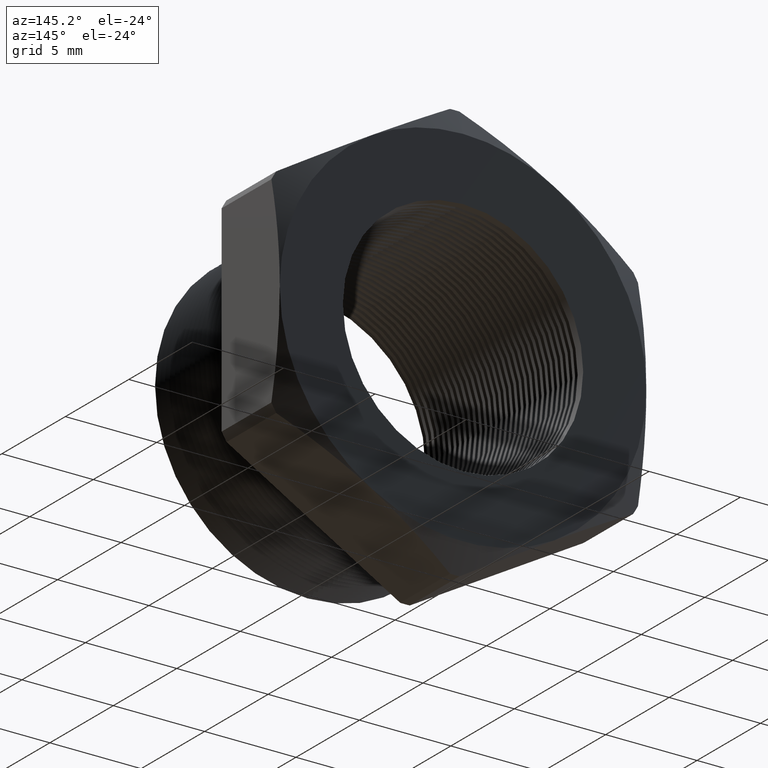
[diagram: clean part render]
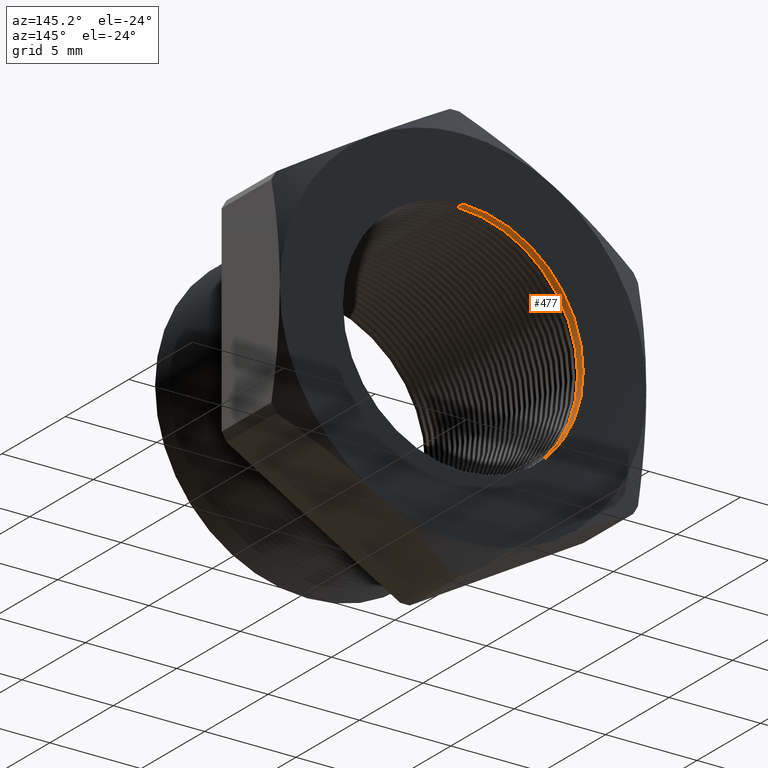
[diagram: same view with one face highlighted and labeled with its STEP entity id]
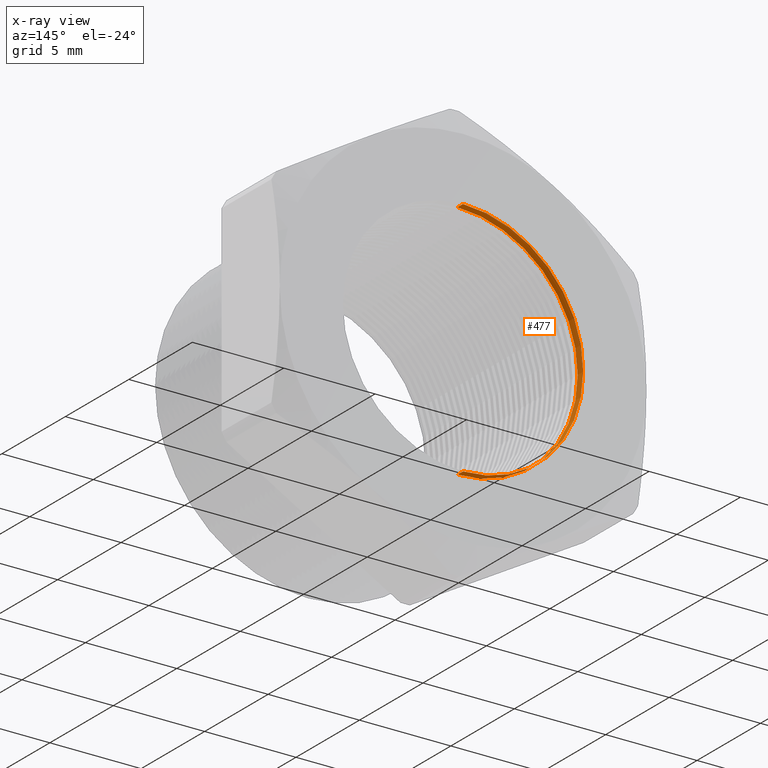
[diagram: x-ray of the same camera — body ghosted, the highlighted face saturated]
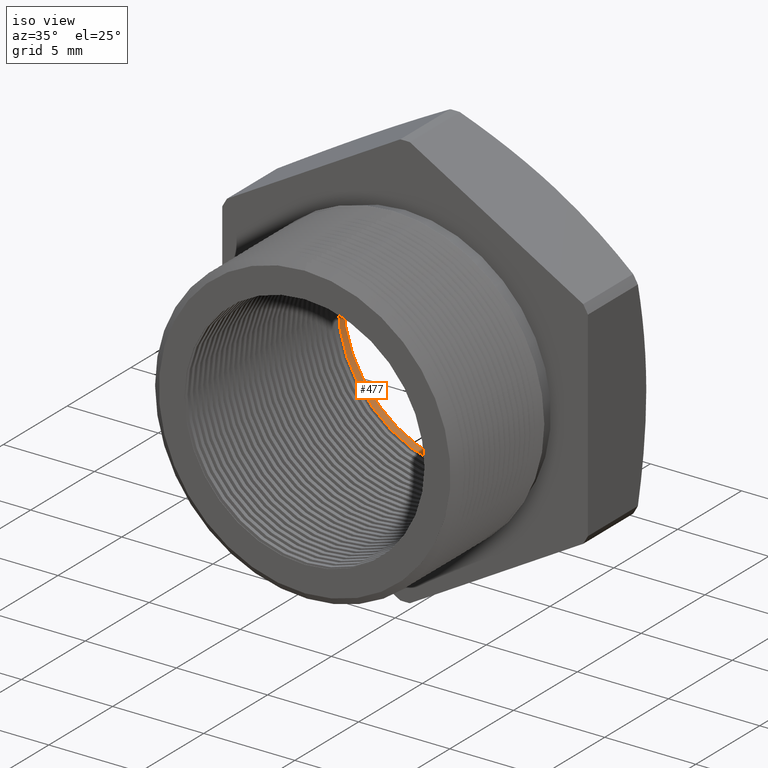
[diagram: same view with one face highlighted and labeled with its STEP entity id]
A machine part, auxiliary view. The second image highlights one B-rep face of the part: STEP entity #477.
The next image is the same camera in x-ray: the body ghosted, the highlighted face saturated — about 0% of this face is hidden behind the body in this view.
A second angle (iso view) of the same face is appended — the face is thin or edge-on in the first view.
In plain terms, the highlighted cylindrical surface (partial cylindrical patch) has radius 6.5783 mm, axis along (-0, -1, -0).
Its self-contained STEP definition (entity closure, byte-faithful):
#346 = ORIENTED_EDGE ( 'NONE', *, *, #455, .F. ) ;
#433 = VERTEX_POINT ( 'NONE', #3804 ) ;
#434 = VERTEX_POINT ( 'NONE', #3799 ) ;
#455 = EDGE_CURVE ( 'NONE', #434, #433, #3825, .T. ) ;
#477 = ADVANCED_FACE ( 'NONE', ( #3904 ), #3903, .F. ) ;
#505 = EDGE_CURVE ( 'NONE', #520, #434, #3963, .T. ) ;
#509 = ORIENTED_EDGE ( 'NONE', *, *, #505, .F. ) ;
#517 = ORIENTED_EDGE ( 'NONE', *, *, #531, .T. ) ;
#520 = VERTEX_POINT ( 'NONE', #4002 ) ;
#521 = VERTEX_POINT ( 'NONE', #4001 ) ;
#522 = ORIENTED_EDGE ( 'NONE', *, *, #530, .F. ) ;
#525 = EDGE_LOOP ( 'NONE', ( #522, #517, #346, #509 ) ) ;
#530 = EDGE_CURVE ( 'NONE', #521, #520, #3991, .T. ) ;
#531 = EDGE_CURVE ( 'NONE', #521, #433, #3981, .T. ) ;
#3799 = CARTESIAN_POINT ( 'NONE',  ( 0.0000000000000000000, 0.3903219653570460000, -0.2589880461203001900 ) ) ;
#3804 = CARTESIAN_POINT ( 'NONE',  ( 3.171688816986526800E-017, 0.3903219653570460000, 0.2589880461203001900 ) ) ;
#3824 = AXIS2_PLACEMENT_3D ( 'NONE', #3887, #3886, #3885 ) ;
#3825 = CIRCLE ( 'NONE', #3824, 0.2589880461203001900 ) ;
#3885 = DIRECTION ( 'NONE',  ( 0.0000000000000000000, 0.0000000000000000000, -1.000000000000000000 ) ) ;
#3886 = DIRECTION ( 'NONE',  ( -0.0000000000000000000, 1.000000000000000000, -0.0000000000000000000 ) ) ;
#3887 = CARTESIAN_POINT ( 'NONE',  ( 0.0000000000000000000, 0.3903219653570460000, 0.0000000000000000000 ) ) ;
#3899 = DIRECTION ( 'NONE',  ( 0.0000000000000000000, 0.0000000000000000000, -1.000000000000000000 ) ) ;
#3900 = DIRECTION ( 'NONE',  ( -0.0000000000000000000, -1.000000000000000000, -0.0000000000000000000 ) ) ;
#3901 = CARTESIAN_POINT ( 'NONE',  ( 0.0000000000000000000, 0.0000000000000000000, 0.0000000000000000000 ) ) ;
#3902 = AXIS2_PLACEMENT_3D ( 'NONE', #3901, #3900, #3899 ) ;
#3903 = CYLINDRICAL_SURFACE ( 'NONE', #3902, 0.2589880461203001900 ) ;
#3904 = FACE_OUTER_BOUND ( 'NONE', #525, .T. ) ;
#3960 = DIRECTION ( 'NONE',  ( -0.0000000000000000000, -1.000000000000000000, -0.0000000000000000000 ) ) ;
#3961 = VECTOR ( 'NONE', #3960, 39.37007874015748100 ) ;
#3962 = CARTESIAN_POINT ( 'NONE',  ( 0.0000000000000000000, 0.0000000000000000000, -0.2589880461203001900 ) ) ;
#3963 = LINE ( 'NONE', #3962, #3961 ) ;
#3979 = VECTOR ( 'NONE', #4037, 39.37007874015748100 ) ;
#3980 = CARTESIAN_POINT ( 'NONE',  ( 3.171688816986526800E-017, 0.0000000000000000000, 0.2589880461203001900 ) ) ;
#3981 = LINE ( 'NONE', #3980, #3979 ) ;
#3982 = DIRECTION ( 'NONE',  ( 0.0000000000000000000, 0.0000000000000000000, -1.000000000000000000 ) ) ;
#3983 = DIRECTION ( 'NONE',  ( -0.0000000000000000000, -1.000000000000000000, -0.0000000000000000000 ) ) ;
#3984 = CARTESIAN_POINT ( 'NONE',  ( 0.0000000000000000000, 0.4075548905829479200, 0.0000000000000000000 ) ) ;
#3985 = AXIS2_PLACEMENT_3D ( 'NONE', #3984, #3983, #3982 ) ;
#3991 = CIRCLE ( 'NONE', #3985, 0.2589880461203001900 ) ;
#4001 = CARTESIAN_POINT ( 'NONE',  ( 3.171688816986526800E-017, 0.4075548905829479200, 0.2589880461203001900 ) ) ;
#4002 = CARTESIAN_POINT ( 'NONE',  ( 0.0000000000000000000, 0.4075548905829479200, -0.2589880461203001900 ) ) ;
#4037 = DIRECTION ( 'NONE',  ( -0.0000000000000000000, -1.000000000000000000, -0.0000000000000000000 ) ) ;